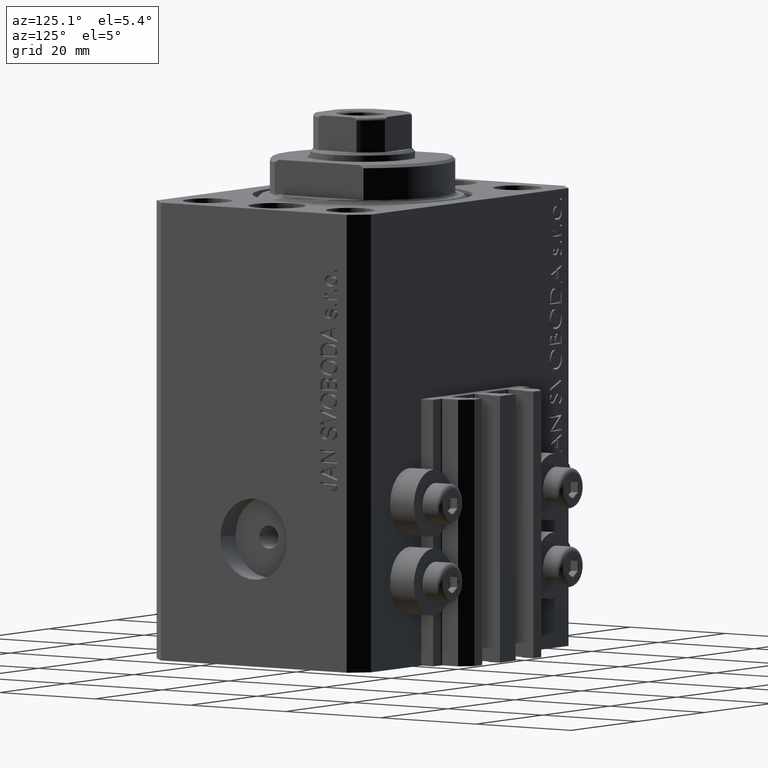
[diagram: clean part render]
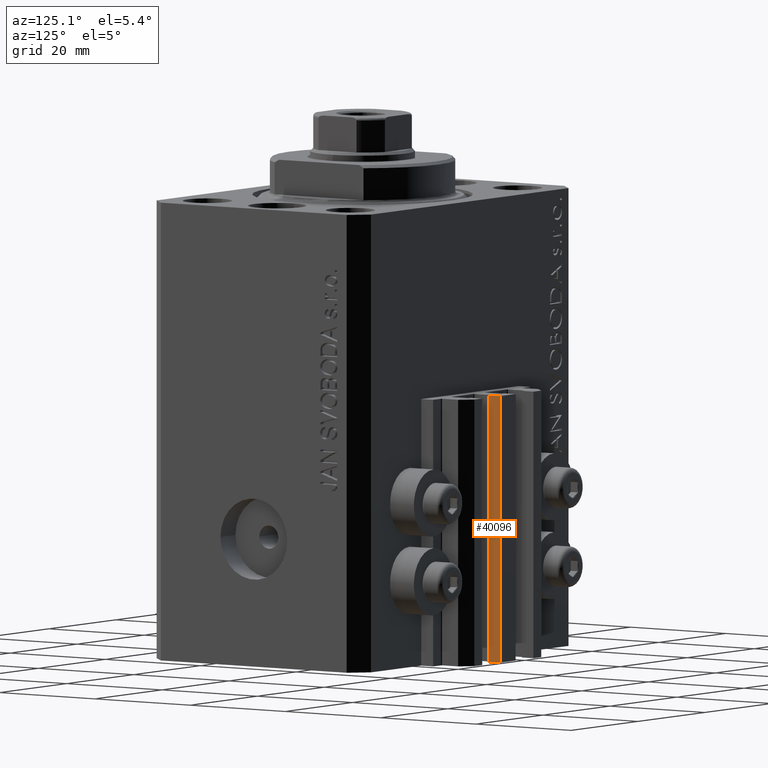
[diagram: same view with one face highlighted and labeled with its STEP entity id]
A machine part, auxiliary view. The second image highlights one B-rep face of the part: STEP entity #40096.
In plain terms, the highlighted planar face has unit normal (1, 0, 0).
Its self-contained STEP definition (entity closure, byte-faithful):
#4609 = PLANE ( 'NONE',  #30057 ) ;
#5768 = EDGE_CURVE ( 'NONE', #14630, #36299, #23220, .T. ) ;
#6184 = VECTOR ( 'NONE', #44940, 1000.000000000000000 ) ;
#8723 = ORIENTED_EDGE ( 'NONE', *, *, #9417, .F. ) ;
#9417 = EDGE_CURVE ( 'NONE', #16179, #36299, #32791, .T. ) ;
#10400 = DIRECTION ( 'NONE',  ( 0.000000000000000000, 1.000000000000000000, 0.000000000000000000 ) ) ;
#11504 = EDGE_LOOP ( 'NONE', ( #8723, #34118, #18445, #43621 ) ) ;
#12502 = CARTESIAN_POINT ( 'NONE',  ( 2.349999999999999645, 28.09999999999950049, -79.00000000000000000 ) ) ;
#14630 = VERTEX_POINT ( 'NONE', #17517 ) ;
#15578 = CARTESIAN_POINT ( 'NONE',  ( 2.349999999999999645, 30.49999999999949907, -79.00000000000000000 ) ) ;
#15859 = EDGE_CURVE ( 'NONE', #35996, #16179, #44388, .T. ) ;
#15922 = CARTESIAN_POINT ( 'NONE',  ( 2.349999999999999645, 28.09999999999950049, -33.00000000000000000 ) ) ;
#16179 = VERTEX_POINT ( 'NONE', #15922 ) ;
#16260 = CARTESIAN_POINT ( 'NONE',  ( 2.349999999999999645, 30.49999999999949907, -33.00000000000000000 ) ) ;
#17517 = CARTESIAN_POINT ( 'NONE',  ( 2.349999999999999645, 30.49999999999949907, -79.00000000000000000 ) ) ;
#17938 = DIRECTION ( 'NONE',  ( 0.000000000000000000, 0.000000000000000000, 1.000000000000000000 ) ) ;
#18180 = DIRECTION ( 'NONE',  ( 0.000000000000000000, 1.000000000000000000, 0.000000000000000000 ) ) ;
#18445 = ORIENTED_EDGE ( 'NONE', *, *, #44980, .T. ) ;
#19162 = CARTESIAN_POINT ( 'NONE',  ( 2.349999999999999645, 28.09999999999950049, -79.00000000000000000 ) ) ;
#22311 = VECTOR ( 'NONE', #17938, 1000.000000000000000 ) ;
#23220 = LINE ( 'NONE', #15578, #6184 ) ;
#28898 = CARTESIAN_POINT ( 'NONE',  ( 2.349999999999999645, 28.09999999999950049, -79.00000000000000000 ) ) ;
#30057 = AXIS2_PLACEMENT_3D ( 'NONE', #19162, #37528, #42052 ) ;
#30371 = FACE_OUTER_BOUND ( 'NONE', #11504, .T. ) ;
#32791 = LINE ( 'NONE', #44014, #45283 ) ;
#32959 = LINE ( 'NONE', #44178, #47015 ) ;
#34118 = ORIENTED_EDGE ( 'NONE', *, *, #15859, .F. ) ;
#35996 = VERTEX_POINT ( 'NONE', #12502 ) ;
#36299 = VERTEX_POINT ( 'NONE', #16260 ) ;
#37528 = DIRECTION ( 'NONE',  ( 1.000000000000000000, 0.000000000000000000, 0.000000000000000000 ) ) ;
#40096 = ADVANCED_FACE ( 'NONE', ( #30371 ), #4609, .T. ) ;
#42052 = DIRECTION ( 'NONE',  ( 0.000000000000000000, 0.000000000000000000, -1.000000000000000000 ) ) ;
#43621 = ORIENTED_EDGE ( 'NONE', *, *, #5768, .T. ) ;
#44014 = CARTESIAN_POINT ( 'NONE',  ( 2.349999999999999645, 28.09999999999950049, -33.00000000000000000 ) ) ;
#44178 = CARTESIAN_POINT ( 'NONE',  ( 2.349999999999999645, 28.09999999999950049, -79.00000000000000000 ) ) ;
#44388 = LINE ( 'NONE', #28898, #22311 ) ;
#44940 = DIRECTION ( 'NONE',  ( 0.000000000000000000, 0.000000000000000000, 1.000000000000000000 ) ) ;
#44980 = EDGE_CURVE ( 'NONE', #35996, #14630, #32959, .T. ) ;
#45283 = VECTOR ( 'NONE', #10400, 1000.000000000000000 ) ;
#47015 = VECTOR ( 'NONE', #18180, 1000.000000000000000 ) ;